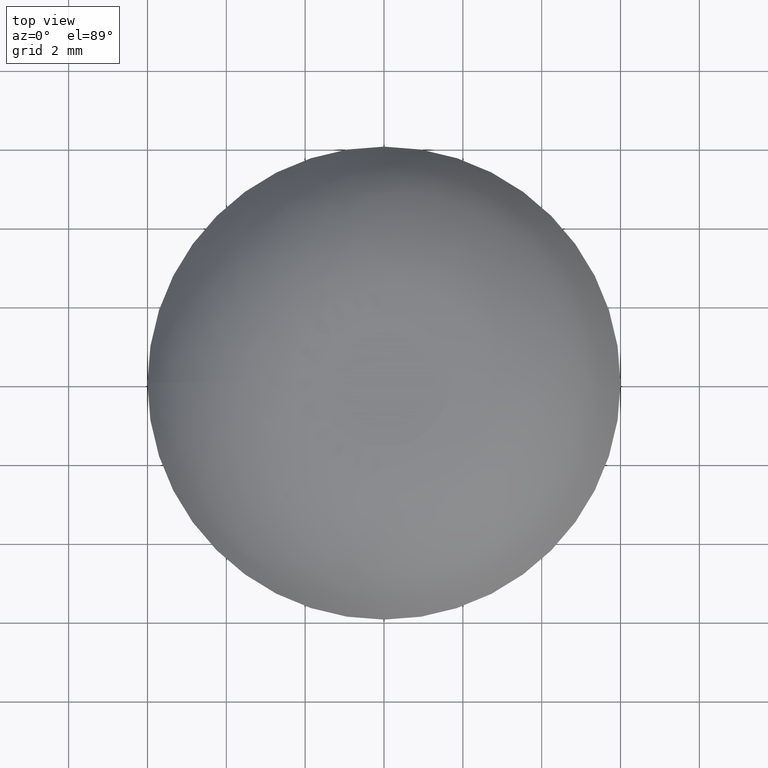
[diagram: clean part render]
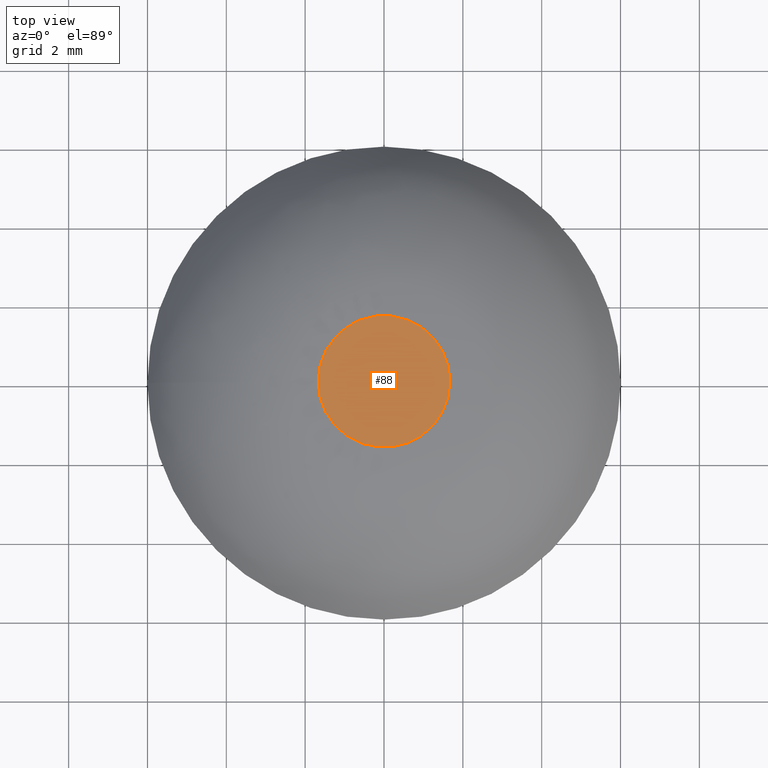
[diagram: same view with one face highlighted and labeled with its STEP entity id]
A machine part, top view. The second image highlights one B-rep face of the part: STEP entity #88.
In plain terms, the highlighted planar face has unit normal (0, 0, 1).
Its self-contained STEP definition (entity closure, byte-faithful):
#19=PLANE('',#103);
#30=FACE_OUTER_BOUND('',#41,.T.);
#41=EDGE_LOOP('',(#79));
#49=CIRCLE('',#102,1.66987298107781);
#56=VERTEX_POINT('',#177);
#63=EDGE_CURVE('',#56,#56,#49,.T.);
#79=ORIENTED_EDGE('',*,*,#63,.F.);
#88=ADVANCED_FACE('',(#30),#19,.T.);
#102=AXIS2_PLACEMENT_3D('',#178,#127,#128);
#103=AXIS2_PLACEMENT_3D('',#182,#129,#130);
#127=DIRECTION('center_axis',(0.,0.,-1.));
#128=DIRECTION('ref_axis',(1.,0.,0.));
#129=DIRECTION('center_axis',(0.,0.,1.));
#130=DIRECTION('ref_axis',(1.,0.,0.));
#177=CARTESIAN_POINT('',(-1.66987298107781,2.04500460125959E-16,2.5));
#178=CARTESIAN_POINT('Origin',(0.,0.,2.5));
#182=CARTESIAN_POINT('Origin',(-3.69627624575467E-16,-1.54197642309049E-16,
2.5));